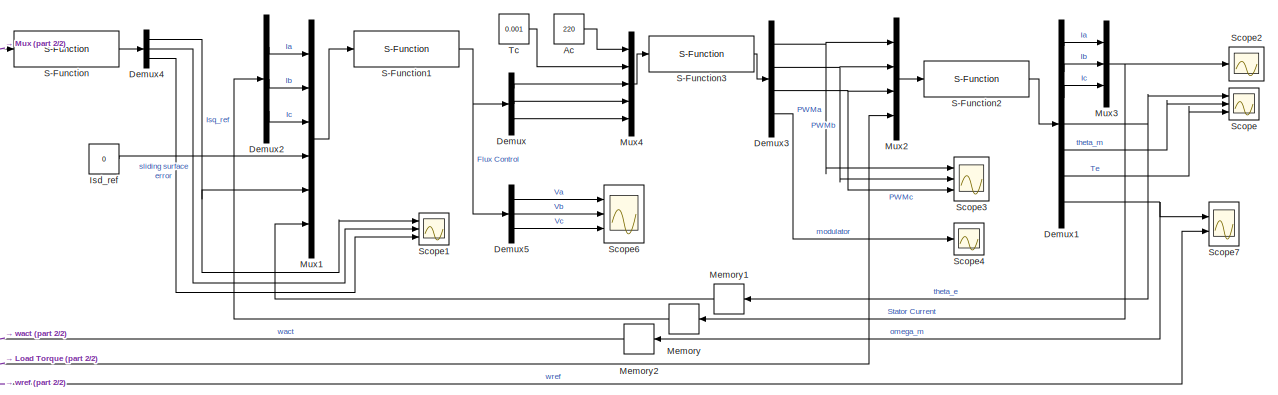
[diagram: root canvas - part 1/2, most of the canvas]
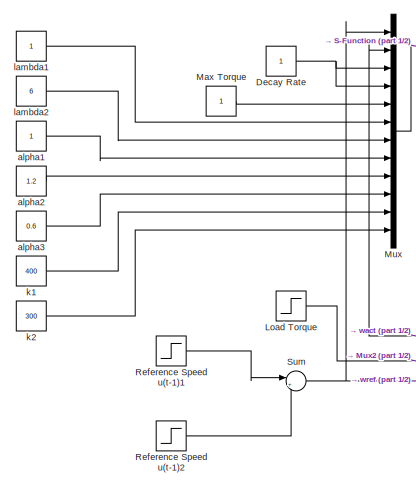
[diagram: root canvas - part 2/2, left side, full height]
MODEL slx_32c45dd62b23
KIND model
CONFIG AbsTol = auto
CONFIG EnableMultiTasking = off
CONFIG FixedStep = 10e-3
CONFIG MaxStep = auto
CONFIG MinStep = auto
CONFIG RelTol = 1e-3
CONFIG SampleTimeConstraint = Unconstrained
CONFIG Solver = VariableStepAuto
CONFIG SolverName = VariableStepAuto
CONFIG StartTime = 0.0
CONFIG StopTime = 10
BLOCK [Constant] Ac
  Value = 220
BLOCK [Constant] Decay Rate
  NameLocation = top
BLOCK [Demux] Demux
  Outputs = 3
  Ports = [1, 3]
BLOCK [Demux] Demux1
  Outputs = 7
  Ports = [1, 7]
BLOCK [Demux] Demux2
  Outputs = 3
  Ports = [1, 3]
BLOCK [Demux] Demux3
  Ports = [1, 4]
BLOCK [Demux] Demux4
  Outputs = 3
  Ports = [1, 3]
BLOCK [Demux] Demux5
  Outputs = 3
  Ports = [1, 3]
BLOCK [Constant] Isd_ref
  Value = 0
BLOCK [Step] Load Torque
  After = 0
  SampleTime = 0
  Time = 5
BLOCK [Constant] Max Torque
  NameLocation = top
BLOCK [Memory] Memory
BLOCK [Memory] Memory1
BLOCK [Memory] Memory2
BLOCK [Mux] Mux
  DisplayOption = bar
  Inputs = 12
  Ports = [12, 1]
BLOCK [Mux] Mux1
  DisplayOption = bar
  Inputs = 6
  Ports = [6, 1]
BLOCK [Mux] Mux2
  DisplayOption = bar
  Ports = [4, 1]
BLOCK [Mux] Mux3
  DisplayOption = bar
  Inputs = 3
  Ports = [3, 1]
BLOCK [Mux] Mux4
  DisplayOption = bar
  Inputs = 5
  Ports = [5, 1]
BLOCK [Step] Reference Speed u(t-1)1
  After = 10
  SampleTime = 0
BLOCK [Step] Reference Speed u(t-1)2
  After = -5
  SampleTime = 0
  Time = 3
BLOCK [S-Function] S-Function
  EnableBusSupport = off
  FunctionName = INT_SMC
  Ports = [1, 1]
  SFcnIsStateOwnerBlock = off
  SFunctionDeploymentMode = off
BLOCK [S-Function] S-Function1
  EnableBusSupport = off
  FunctionName = FOC
  Ports = [1, 1]
  SFcnIsStateOwnerBlock = off
  SFunctionDeploymentMode = off
BLOCK [S-Function] S-Function2
  EnableBusSupport = off
  FunctionName = PMSM
  Ports = [1, 1]
  SFcnIsStateOwnerBlock = off
  SFunctionDeploymentMode = off
BLOCK [S-Function] S-Function3
  EnableBusSupport = off
  FunctionName = SPWM
  Ports = [1, 1]
  SFcnIsStateOwnerBlock = off
  SFunctionDeploymentMode = off
BLOCK [Scope] Scope
  Floating = off
  NumInputPorts = 3
  Ports = [3]
  ScopeSpecificationString = Simulink.scopes.TimeScopeBlockCfg('CurrentConfiguration', extmgr.ConfigurationSet(extmgr.Configuration('Core','General UI',true,'FigureColor',[1 1 1]),extmgr.Configuration('Core','Source UI',true),extmgr.Configuration('Sources','WiredSimulink',true,'DataLoggingVariableName','ScopeData1'),extmgr.Configuration('Visuals','Time Domain',true,'SerializedDisplays',{struct('MinYLimReal','-334.82186','MaxY...<+1603ch>
BLOCK [Scope] Scope1
  Floating = off
  NumInputPorts = 3
  Ports = [3]
  ScopeSpecificationString = Simulink.scopes.TimeScopeBlockCfg('CurrentConfiguration', extmgr.ConfigurationSet(extmgr.Configuration('Core','General UI',true),extmgr.Configuration('Core','Source UI',true),extmgr.Configuration('Sources','WiredSimulink',true,'DataLoggingVariableName','ScopeData1'),extmgr.Configuration('Visuals','Time Domain',true,'SerializedDisplays',{struct('MinYLimReal','-163.05197','MaxYLimReal','147.66567','...<+2783ch>
BLOCK [Scope] Scope2
  Floating = off
  NumInputPorts = 1
  Ports = [1]
  ScopeSpecificationString = Simulink.scopes.TimeScopeBlockCfg('CurrentConfiguration', extmgr.ConfigurationSet(extmgr.Configuration('Core','General UI',true,'FigureColor',[1 1 1]),extmgr.Configuration('Core','Source UI',true),extmgr.Configuration('Sources','WiredSimulink',true,'DataLoggingVariableName','ScopeData3'),extmgr.Configuration('Visuals','Time Domain',true,'SerializedDisplays',{struct('MinYLimReal','-14.76135','MaxYL...<+1948ch>
BLOCK [Scope] Scope3
  Floating = off
  NumInputPorts = 3
  Ports = [3]
  ScopeSpecificationString = Simulink.scopes.TimeScopeBlockCfg('CurrentConfiguration', extmgr.ConfigurationSet(extmgr.Configuration('Core','General UI',true,'FigureColor',[1 1 1]),extmgr.Configuration('Core','Source UI',true),extmgr.Configuration('Sources','WiredSimulink',true,'DataLoggingVariableName','ScopeData1'),extmgr.Configuration('Visuals','Time Domain',true,'SerializedDisplays',{struct('MinYLimReal','-275.00000','MaxY...<+3023ch>
BLOCK [Scope] Scope4
  Floating = off
  NumInputPorts = 1
  Ports = [1]
  ScopeSpecificationString = Simulink.scopes.TimeScopeBlockCfg('CurrentConfiguration', extmgr.ConfigurationSet(extmgr.Configuration('Core','General UI',true,'FigureColor',[1 1 1]),extmgr.Configuration('Core','Source UI',true),extmgr.Configuration('Sources','WiredSimulink',true,'DataLoggingVariableName','ScopeData5'),extmgr.Configuration('Visuals','Time Domain',true,'SerializedDisplays',{struct('MinYLimReal','0.07842','MaxYLim...<+1650ch>
BLOCK [Scope] Scope6
  Floating = off
  NumInputPorts = 3
  Ports = [3]
  ScopeSpecificationString = Simulink.scopes.TimeScopeBlockCfg('CurrentConfiguration', extmgr.ConfigurationSet(extmgr.Configuration('Core','General UI',true,'FigureColor',[1 1 1]),extmgr.Configuration('Core','Source UI',true),extmgr.Configuration('Sources','WiredSimulink',true,'DataLoggingVariableName','ScopeData1'),extmgr.Configuration('Visuals','Time Domain',true,'SerializedDisplays',{struct('MinYLimReal','-64351.3753','Max...<+3102ch>
BLOCK [Scope] Scope7
  Floating = off
  NumInputPorts = 2
  Ports = [2]
  ScopeSpecificationString = Simulink.scopes.TimeScopeBlockCfg('CurrentConfiguration', extmgr.ConfigurationSet(extmgr.Configuration('Core','General UI',true,'FigureColor',[1 1 1]),extmgr.Configuration('Core','Source UI',true),extmgr.Configuration('Sources','WiredSimulink',true,'DataLoggingVariableName','ScopeData7'),extmgr.Configuration('Visuals','Time Domain',true,'SerializedDisplays',{struct('MinYLimReal','-161.28027','MaxY...<+1619ch>
BLOCK [Sum] Sum
  Inputs = |++
  Ports = [2, 1]
BLOCK [Constant] Tc
  Value = 0.001
BLOCK [Constant] alpha1
BLOCK [Constant] alpha2
  Value = 1.2
BLOCK [Constant] alpha3
  Value = 0.6
BLOCK [Constant] k1
  Value = 400
BLOCK [Constant] k2
  Value = 300
BLOCK [Constant] lambda1
BLOCK [Constant] lambda2
  Value = 6
LINE Ac:1 -> Mux4:1
NET Decay Rate:1 -> Mux:3, Mux:4
LINE Demux1:1 -> Mux3:1
LINE Demux1:2 -> Mux3:2
LINE Demux1:3 -> Mux3:3
NET Demux1:4 -> Memory1:1, Scope:1
LINE Demux1:5 -> Scope:2
LINE Demux1:6 -> Scope:3
NET Demux1:7 -> Memory2:1, Scope7:1
LINE Demux2:1 -> Mux1:1
LINE Demux2:2 -> Mux1:2
LINE Demux2:3 -> Mux1:3
NET Demux3:1 -> Mux2:1, Scope3:1
NET Demux3:2 -> Mux2:2, Scope3:2
NET Demux3:3 -> Mux2:3, Scope3:3
LINE Demux3:4 -> Scope4:1
NET Demux4:1 -> Mux1:5, Scope1:1
LINE Demux4:2 -> Scope1:2
LINE Demux4:3 -> Scope1:3
LINE Demux5:1 -> Scope6:1
LINE Demux5:2 -> Scope6:2
LINE Demux5:3 -> Scope6:3
LINE Demux:1 -> Mux4:3
LINE Demux:2 -> Mux4:4
LINE Demux:3 -> Mux4:5
LINE Isd_ref:1 -> Mux1:4
LINE Load Torque:1 -> Mux2:4
LINE Max Torque:1 -> Mux:5
LINE Memory1:1 -> Mux1:6
LINE Memory2:1 -> Mux:2
LINE Memory:1 -> Demux2:1
LINE Mux1:1 -> S-Function1:1
LINE Mux2:1 -> S-Function2:1
NET Mux3:1 -> Memory:1, Scope2:1
LINE Mux4:1 -> S-Function3:1
LINE Mux:1 -> S-Function:1
LINE Reference Speed u(t-1)1:1 -> Sum:1
LINE Reference Speed u(t-1)2:1 -> Sum:2
NET S-Function1:1 -> Demux5:1, Demux:1
LINE S-Function2:1 -> Demux1:1
LINE S-Function3:1 -> Demux3:1
LINE S-Function:1 -> Demux4:1
NET Sum:1 -> Mux:1, Scope7:2
LINE Tc:1 -> Mux4:2
LINE alpha1:1 -> Mux:8
LINE alpha2:1 -> Mux:9
LINE alpha3:1 -> Mux:10
LINE k1:1 -> Mux:11
LINE k2:1 -> Mux:12
LINE lambda1:1 -> Mux:6
LINE lambda2:1 -> Mux:7
note: NET lines group one-source signal fan-out (src -> all destinations, sorted); 1:1 wires keep LINE
